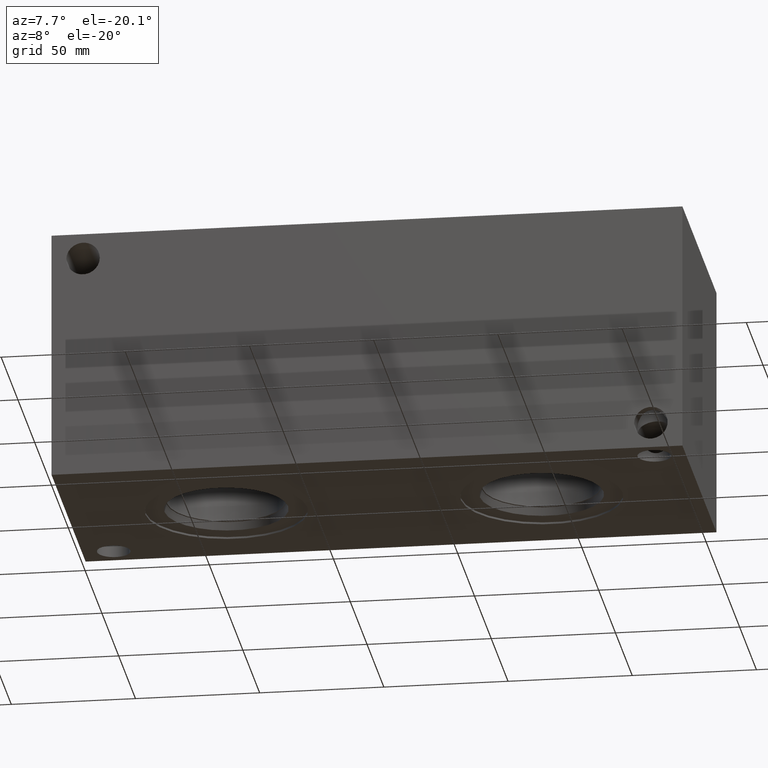
[diagram: clean part render]
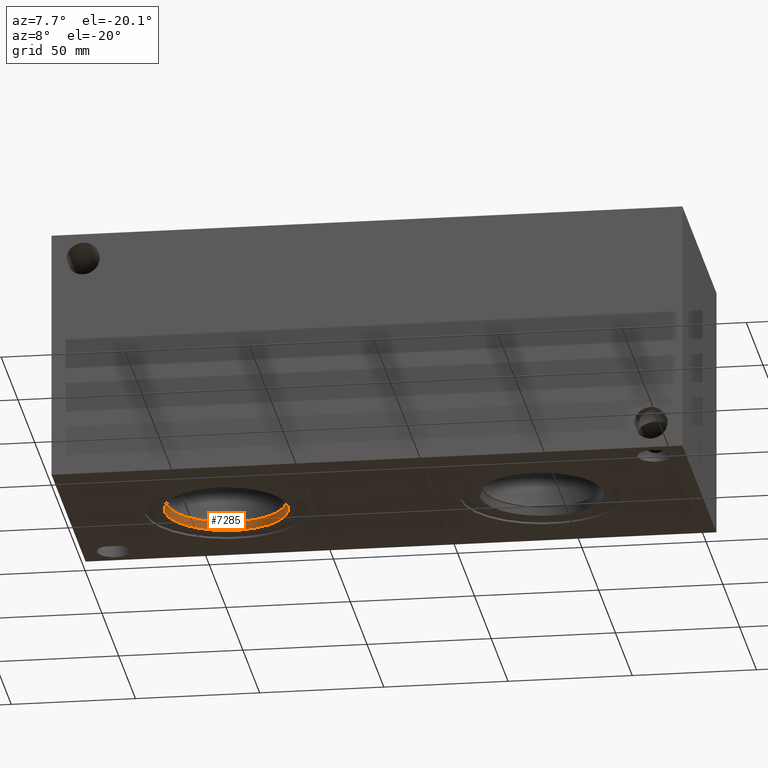
[diagram: same view with one face highlighted and labeled with its STEP entity id]
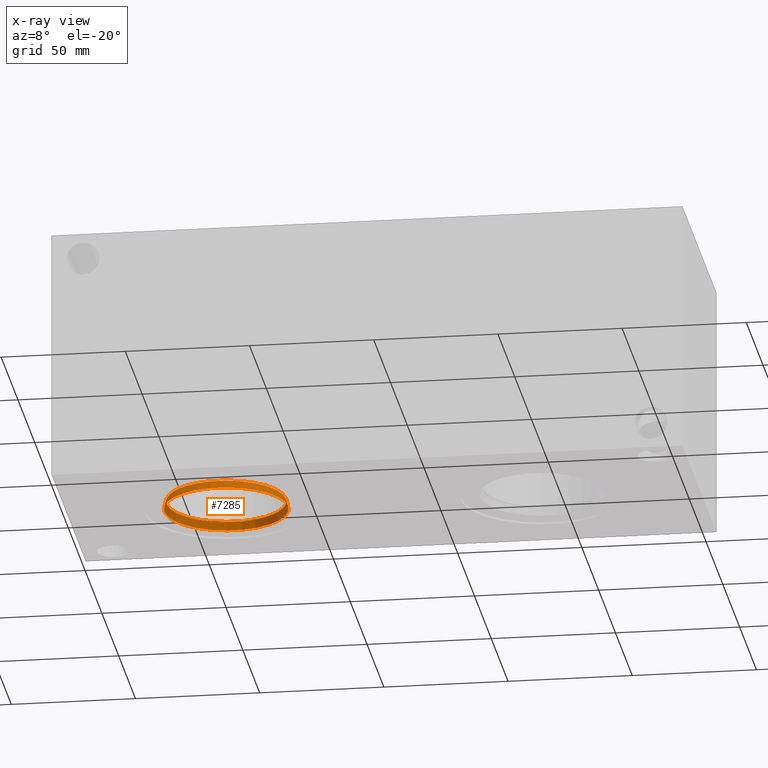
[diagram: x-ray of the same camera — body ghosted, the highlighted face saturated]
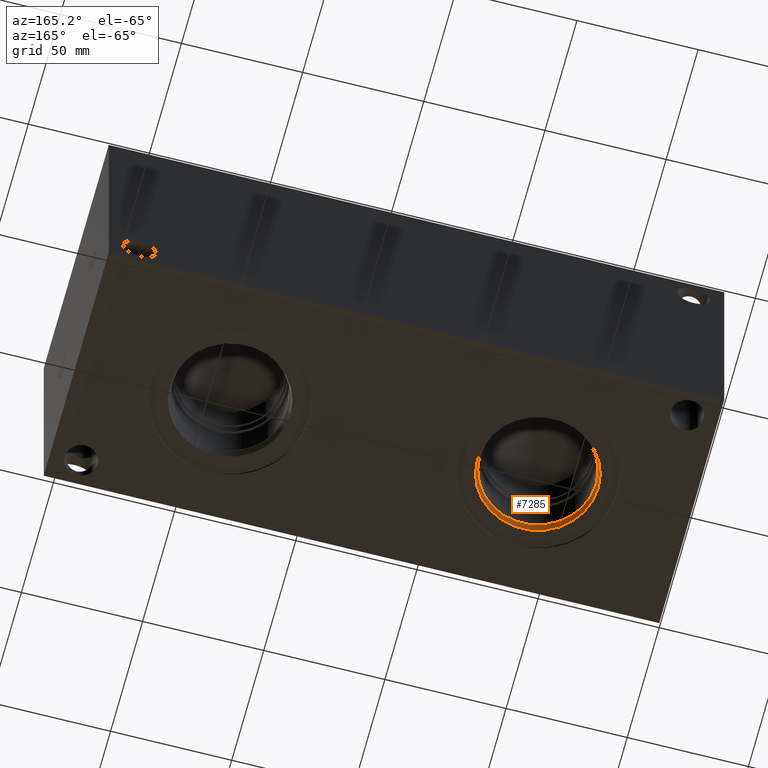
[diagram: same view with one face highlighted and labeled with its STEP entity id]
A machine part, auxiliary view. The second image highlights one B-rep face of the part: STEP entity #7285.
The next image is the same camera in x-ray: the body ghosted, the highlighted face saturated — about 0% of this face is hidden behind the body in this view.
A second angle (auxiliary view) of the same face is appended — the face is thin or edge-on in the first view.
In plain terms, the highlighted conical surface has half-angle 15.031 deg.
Its self-contained STEP definition (entity closure, byte-faithful):
#20=CONICAL_SURFACE('',#7632,24.46655,0.262336001092613);
#114=CIRCLE('',#7630,24.9047);
#115=CIRCLE('',#7631,24.9047);
#116=CIRCLE('',#7633,24.0284);
#117=CIRCLE('',#7634,24.0284);
#825=FACE_OUTER_BOUND('',#1230,.T.);
#1230=EDGE_LOOP('',(#6250,#6251,#6252,#6253,#6254,#6255));
#1965=LINE('',#12313,#2686);
#2686=VECTOR('',#9001,24.46655);
#3343=VERTEX_POINT('',#12307);
#3344=VERTEX_POINT('',#12308);
#3345=VERTEX_POINT('',#12312);
#3346=VERTEX_POINT('',#12314);
#4327=EDGE_CURVE('',#3343,#3344,#114,.T.);
#4328=EDGE_CURVE('',#3344,#3343,#115,.T.);
#4329=EDGE_CURVE('',#3344,#3345,#1965,.T.);
#4330=EDGE_CURVE('',#3345,#3346,#116,.T.);
#4331=EDGE_CURVE('',#3346,#3345,#117,.T.);
#6250=ORIENTED_EDGE('',*,*,#4327,.F.);
#6251=ORIENTED_EDGE('',*,*,#4328,.F.);
#6252=ORIENTED_EDGE('',*,*,#4329,.T.);
#6253=ORIENTED_EDGE('',*,*,#4330,.T.);
#6254=ORIENTED_EDGE('',*,*,#4331,.T.);
#6255=ORIENTED_EDGE('',*,*,#4329,.F.);
#7285=ADVANCED_FACE('',(#825),#20,.F.);
#7630=AXIS2_PLACEMENT_3D('',#12309,#8995,#8996);
#7631=AXIS2_PLACEMENT_3D('',#12310,#8997,#8998);
#7632=AXIS2_PLACEMENT_3D('',#12311,#8999,#9000);
#7633=AXIS2_PLACEMENT_3D('',#12315,#9002,#9003);
#7634=AXIS2_PLACEMENT_3D('',#12316,#9004,#9005);
#8995=DIRECTION('center_axis',(0.,0.,1.));
#8996=DIRECTION('ref_axis',(1.,0.,0.));
#8997=DIRECTION('center_axis',(0.,0.,1.));
#8998=DIRECTION('ref_axis',(1.,0.,0.));
#8999=DIRECTION('center_axis',(0.,0.,-1.));
#9000=DIRECTION('ref_axis',(1.,0.,0.));
#9001=DIRECTION('',(0.259337336452565,3.17596638986034E-17,0.965786801484515));
#9002=DIRECTION('center_axis',(0.,0.,1.));
#9003=DIRECTION('ref_axis',(1.,0.,0.));
#9004=DIRECTION('center_axis',(0.,0.,1.));
#9005=DIRECTION('ref_axis',(1.,0.,0.));
#12307=CARTESIAN_POINT('',(88.4047,50.8,0.7874));
#12308=CARTESIAN_POINT('',(38.5953,50.8,0.787400000000002));
#12309=CARTESIAN_POINT('Origin',(63.5,50.8,0.7874));
#12310=CARTESIAN_POINT('Origin',(63.5,50.8,0.7874));
#12311=CARTESIAN_POINT('Origin',(63.5,50.8,2.4190952));
#12312=CARTESIAN_POINT('',(39.4716,50.8,4.0507904));
#12313=CARTESIAN_POINT('',(39.03345,50.8,2.4190952));
#12314=CARTESIAN_POINT('',(87.5284,50.8,4.0507904));
#12315=CARTESIAN_POINT('Origin',(63.5,50.8,4.0507904));
#12316=CARTESIAN_POINT('Origin',(63.5,50.8,4.0507904));